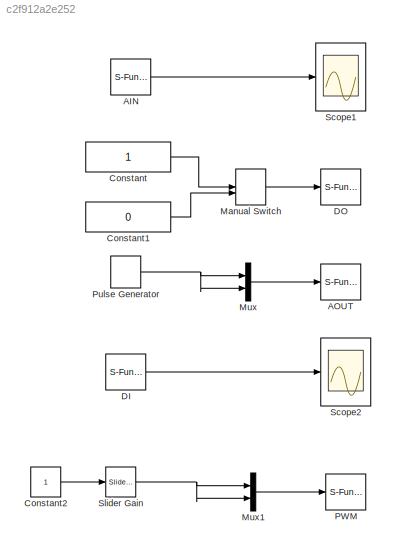
MODEL slx_c2f912a2e252
KIND model
CONFIG StartFcn = run runtarget
BLOCK [S-Function] AIN
  EnableBusSupport = off
  FunctionName = AIN
  Parameters = sampleTime
  Ports = [0, 1]
BLOCK [S-Function] AOUT
  EnableBusSupport = off
  FunctionName = AOUT
  Parameters = sampleTime
  Ports = [1]
BLOCK [Constant] Constant
  OutDataTypeStr = uint8
BLOCK [Constant] Constant1
  OutDataTypeStr = uint8
  Value = 0
BLOCK [Constant] Constant2
BLOCK [S-Function] DI
  EnableBusSupport = off
  FunctionName = DIN
  Parameters = uint8(pinEnable), sampleTime
  Ports = [0, 1]
BLOCK [S-Function] DO
  EnableBusSupport = off
  FunctionName = DOUT
  Parameters = uint8(pinEnable), sampleTime
  Ports = [1]
BLOCK [ManualSwitch] Manual Switch
  CurrentSetting = 0
BLOCK [Mux] Mux
  DisplayOption = bar
  Inputs = 2
  Ports = [2, 1]
BLOCK [Mux] Mux1
  DisplayOption = bar
  Inputs = 2
  Ports = [2, 1]
BLOCK [S-Function] PWM
  EnableBusSupport = off
  FunctionName = PWM
  Parameters = frequency, sampleTime
  Ports = [1]
BLOCK [DiscretePulseGenerator] Pulse Generator
  Amplitude = 5
  Period = 200
  Ports = [0, 1]
  PulseWidth = 100
  SampleTime = 0.01
BLOCK [Scope] Scope1
  Floating = off
  NumInputPorts = 1
  Ports = [1]
  SaveName = ScopeData1
  ShowLegends = off
  TimeRange = 10
  YMax = 600
  YMin = 0
BLOCK [Scope] Scope2
  Floating = off
  NumInputPorts = 1
  Ports = [1]
  ShowLegends = off
  TimeRange = 10
  YMax = 1.1
  YMin = -0.1
BLOCK [Reference] Slider Gain  REF=simulink/Math
Operations/Slider
Gain
  Ports = [1, 1]
  SourceBlock = simulink/Math\nOperations/Slider\nGain
  SourceType = Slider Gain
  gain = 4
  high = 100
  low = 0
LINE AIN:1 -> Scope1:1
LINE Constant1:1 -> Manual Switch:2
LINE Constant2:1 -> Slider Gain:1
LINE Constant:1 -> Manual Switch:1
LINE DI:1 -> Scope2:1
LINE Manual Switch:1 -> DO:1
LINE Mux1:1 -> PWM:1
LINE Mux:1 -> AOUT:1
NET Pulse Generator:1 -> Mux:1, Mux:2
NET Slider Gain:1 -> Mux1:1, Mux1:2
note: NET lines group one-source signal fan-out (src -> all destinations, sorted); 1:1 wires keep LINE
